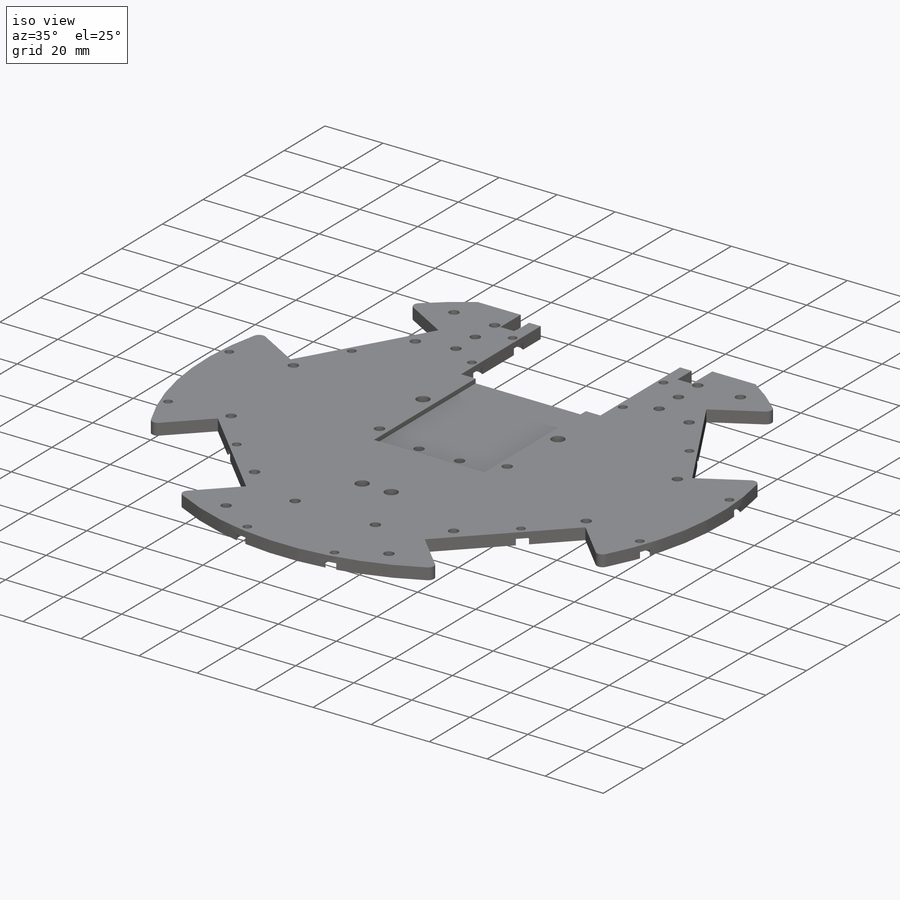
[diagram: iso view]
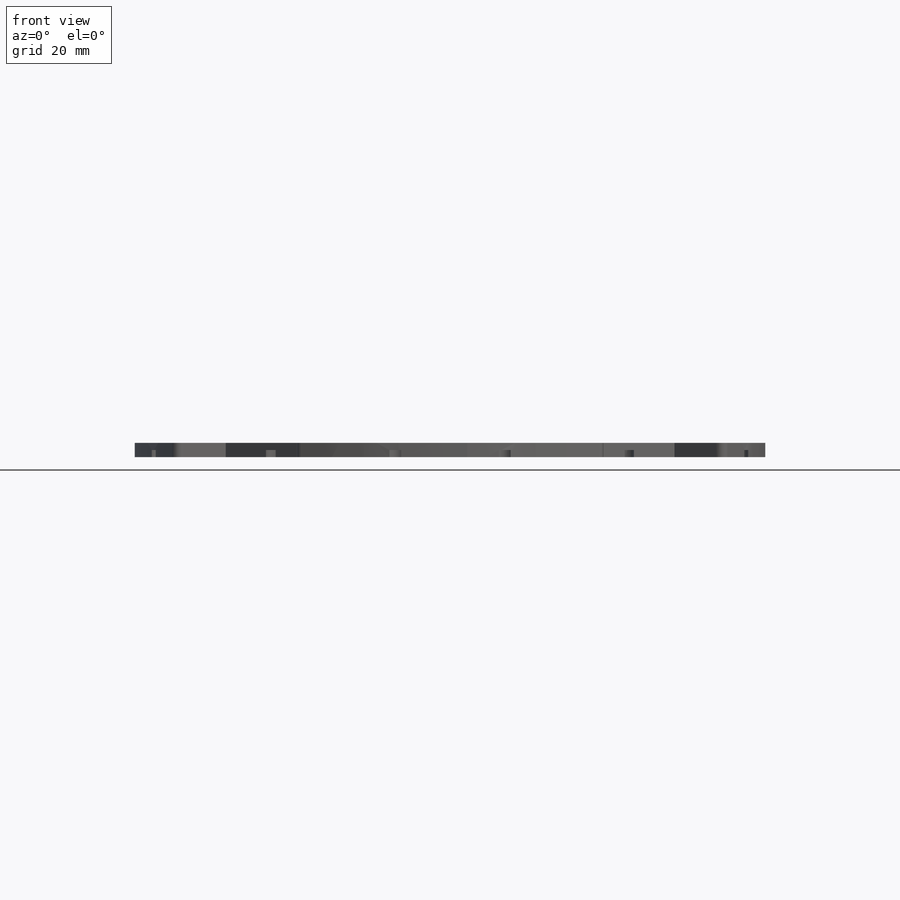
[diagram: front view]
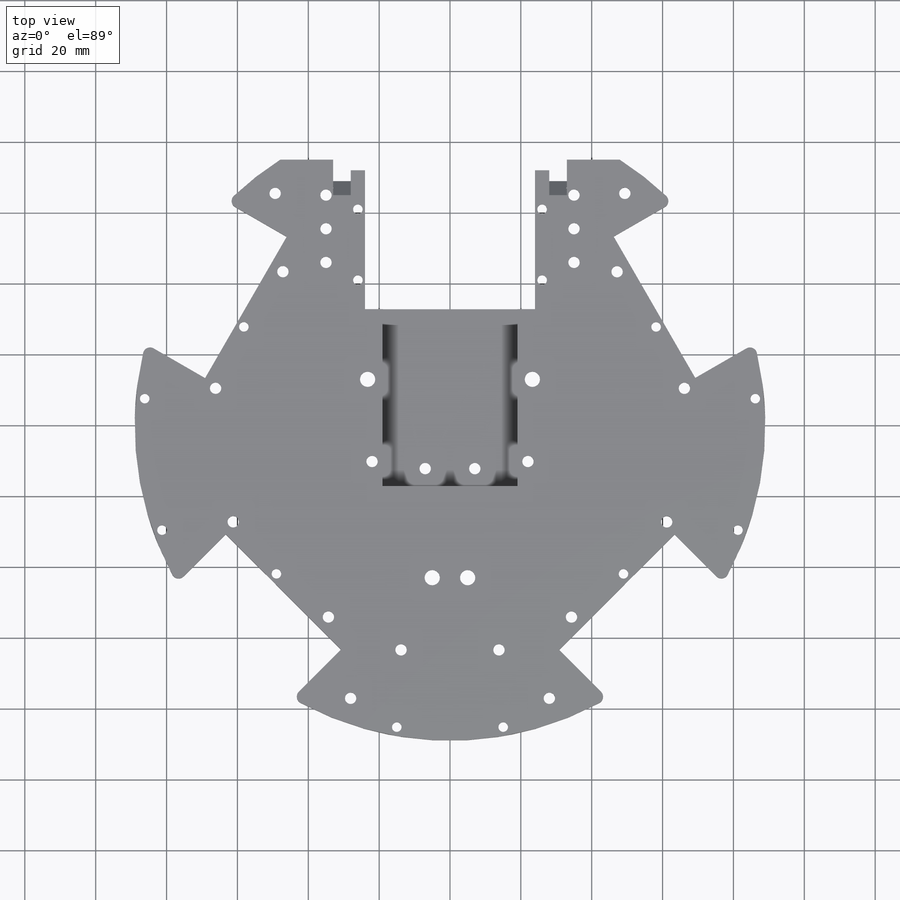
[diagram: top view]
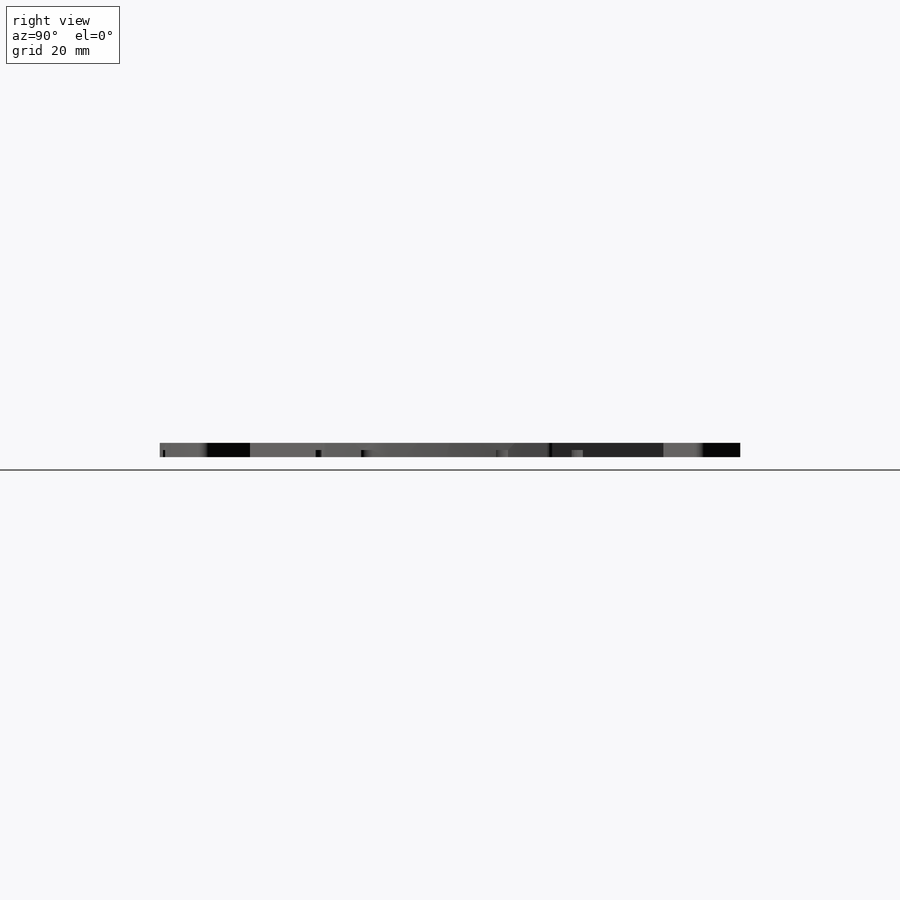
[diagram: right view]
SOLIDWORKS PART (.sldprt)
format: sldprt  version: not decoded by parser v0  size: 754,688 bytes
history: native  units: mm
features: sketch x27, hole x9, cut_extrude x2, material x1, extrude x1, chamfer x1 (+13 scaffold rows collapsed)
feature tree (54):
  scaffold x13  (default folders/planes/origin — collapsed)
  material  "Material <not specified>"
  sketch  "Sketch1"  dims[D1=2.0mm]
  extrude  "Boss-Extrude1"  Depth=4mm
  sketch  "Sketch2"  dims[D1=66.0mm]
  cut_extrude  "Cut-Extrude1"  Depth=4mm
  sketch  "Sketch3"  dims[D1=50.0mm D2=38.0mm]
  cut_extrude  "Cut-Extrude2"  Depth=1.5mm
  chamfer  "Chamfer1"  Distance=4mm Angle=45deg
  hole  "CBORE for M2.5 Pan Head Machine Screw1"  Diameter=2.7mm Depth=4mm
  sketch  "3DSketch2"  dims[D1=20.0mm D2=2.0mm D3=8.2mm D4=2.0mm]
  sketch  "Sketch5"  dims[hole-wizard template sketch: 42 standard entries collapsed; hole parameters kept: c12.Thru Hole Depth=4.0mm c12.C'Bore Dia.=6.0mm c12.C'Bore Depth=2.1mm]
  sketch  "Sketch6"
  hole  "CBORE for M3 Pan Head Machine Screw5"  Diameter=3.2mm Depth=4mm
  sketch  "3DSketch3"
  sketch  "Sketch7"  dims[hole-wizard template sketch: 42 standard entries collapsed; hole parameters kept: c12.Thru Hole Depth=4.0mm c12.C'Bore Dia.=6.0mm c12.C'Bore Depth=2.0mm]
  hole  "CBORE for M3 Pan Head Machine Screw1"  Diameter=3.2mm Depth=4mm
  sketch  "3DSketch4"  dims[D1=11.0mm D2=10.0mm D3=9.5mm D4=9.5mm D5=11.0mm]
  sketch  "Sketch8"  dims[hole-wizard template sketch: 42 standard entries collapsed; hole parameters kept: c12.Thru Hole Depth=4.0mm c12.C'Bore Dia.=6.0mm c12.C'Bore Depth=2.0mm]
  sketch  "Sketch9"  dims[D1=1.0mm D2=38.0mm D3=1.0mm D4=38.0mm D5=4.0mm D6=4.0mm]
  hole  "CBORE for M3 Pan Head Machine Screw2"  Diameter=3.2mm Depth=4mm
  sketch  "3DSketch5"
  sketch  "Sketch10"  dims[hole-wizard template sketch: 42 standard entries collapsed; hole parameters kept: c12.Thru Hole Depth=4.0mm c12.C'Bore Dia.=6.0mm c12.C'Bore Depth=2.0mm]
  hole  "CBORE for M2.5 Pan Head Machine Screw3"  Diameter=2.7mm Depth=4mm
  sketch  "3DSketch6"
  sketch  "Sketch11"  dims[hole-wizard template sketch: 42 standard entries collapsed; hole parameters kept: c12.Thru Hole Depth=4.0mm c12.C'Bore Dia.=6.0mm c12.C'Bore Depth=2.0mm]
  sketch  "Sketch12"  dims[D1=23.25mm D2=5.0mm D3=19.8mm D4=75.8mm]
  hole  "CBORE for M4 Pan Head Machine Screw1"  Diameter=4.3mm Depth=4mm
  sketch  "3DSketch7"
  sketch  "Sketch13"  dims[hole-wizard template sketch: 42 standard entries collapsed; hole parameters kept: c12.Thru Hole Depth=4.0mm c12.C'Bore Dia.=8.0mm c12.C'Bore Depth=2.0mm]
  sketch  "Sketch14"  dims[D1=~82.98791mm]
  hole  "CBORE for M2.5 Pan Head Machine Screw4"  Diameter=2.7mm Depth=4mm
  sketch  "3DSketch8"
  sketch  "Sketch15"  dims[hole-wizard template sketch: 42 standard entries collapsed; hole parameters kept: c12.Thru Hole Depth=4.0mm c12.C'Bore Dia.=6.0mm c12.C'Bore Depth=2.0mm]
  sketch  "Sketch16"  dims[c1.D1=7.0mm c1.D2=~9.897112mm c2.D1=7.0mm c2.D2=3.0mm c2.D3=17.0mm]
  hole  "CBORE for M3 Pan Head Machine Screw3"  Diameter=3.2mm Depth=4mm
  sketch  "3DSketch9"
  sketch  "Sketch17"  dims[hole-wizard template sketch: 42 standard entries collapsed; hole parameters kept: c12.Thru Hole Depth=4.0mm c12.C'Bore Dia.=6.0mm c12.C'Bore Depth=2.0mm]
  sketch  "Sketch18"  dims[D1=5.0mm D2=7.0mm D3=6.0mm]
  hole  "CBORE for M3 Pan Head Machine Screw4"  Diameter=3.2mm Depth=4mm
  sketch  "3DSketch10"
  sketch  "Sketch19"  dims[hole-wizard template sketch: 42 standard entries collapsed; hole parameters kept: c12.Thru Hole Depth=4.0mm c12.C'Bore Dia.=6.0mm c12.C'Bore Depth=2.0mm]
decode coverage: 32 of 40 modeling features carry decoded parameters
note: ~ marks probable driven/reference dimensions
summary: Diameter pulled from absorbed wizard sketch
note: suppression state not decoded; provenance and decode notes live in map.json
